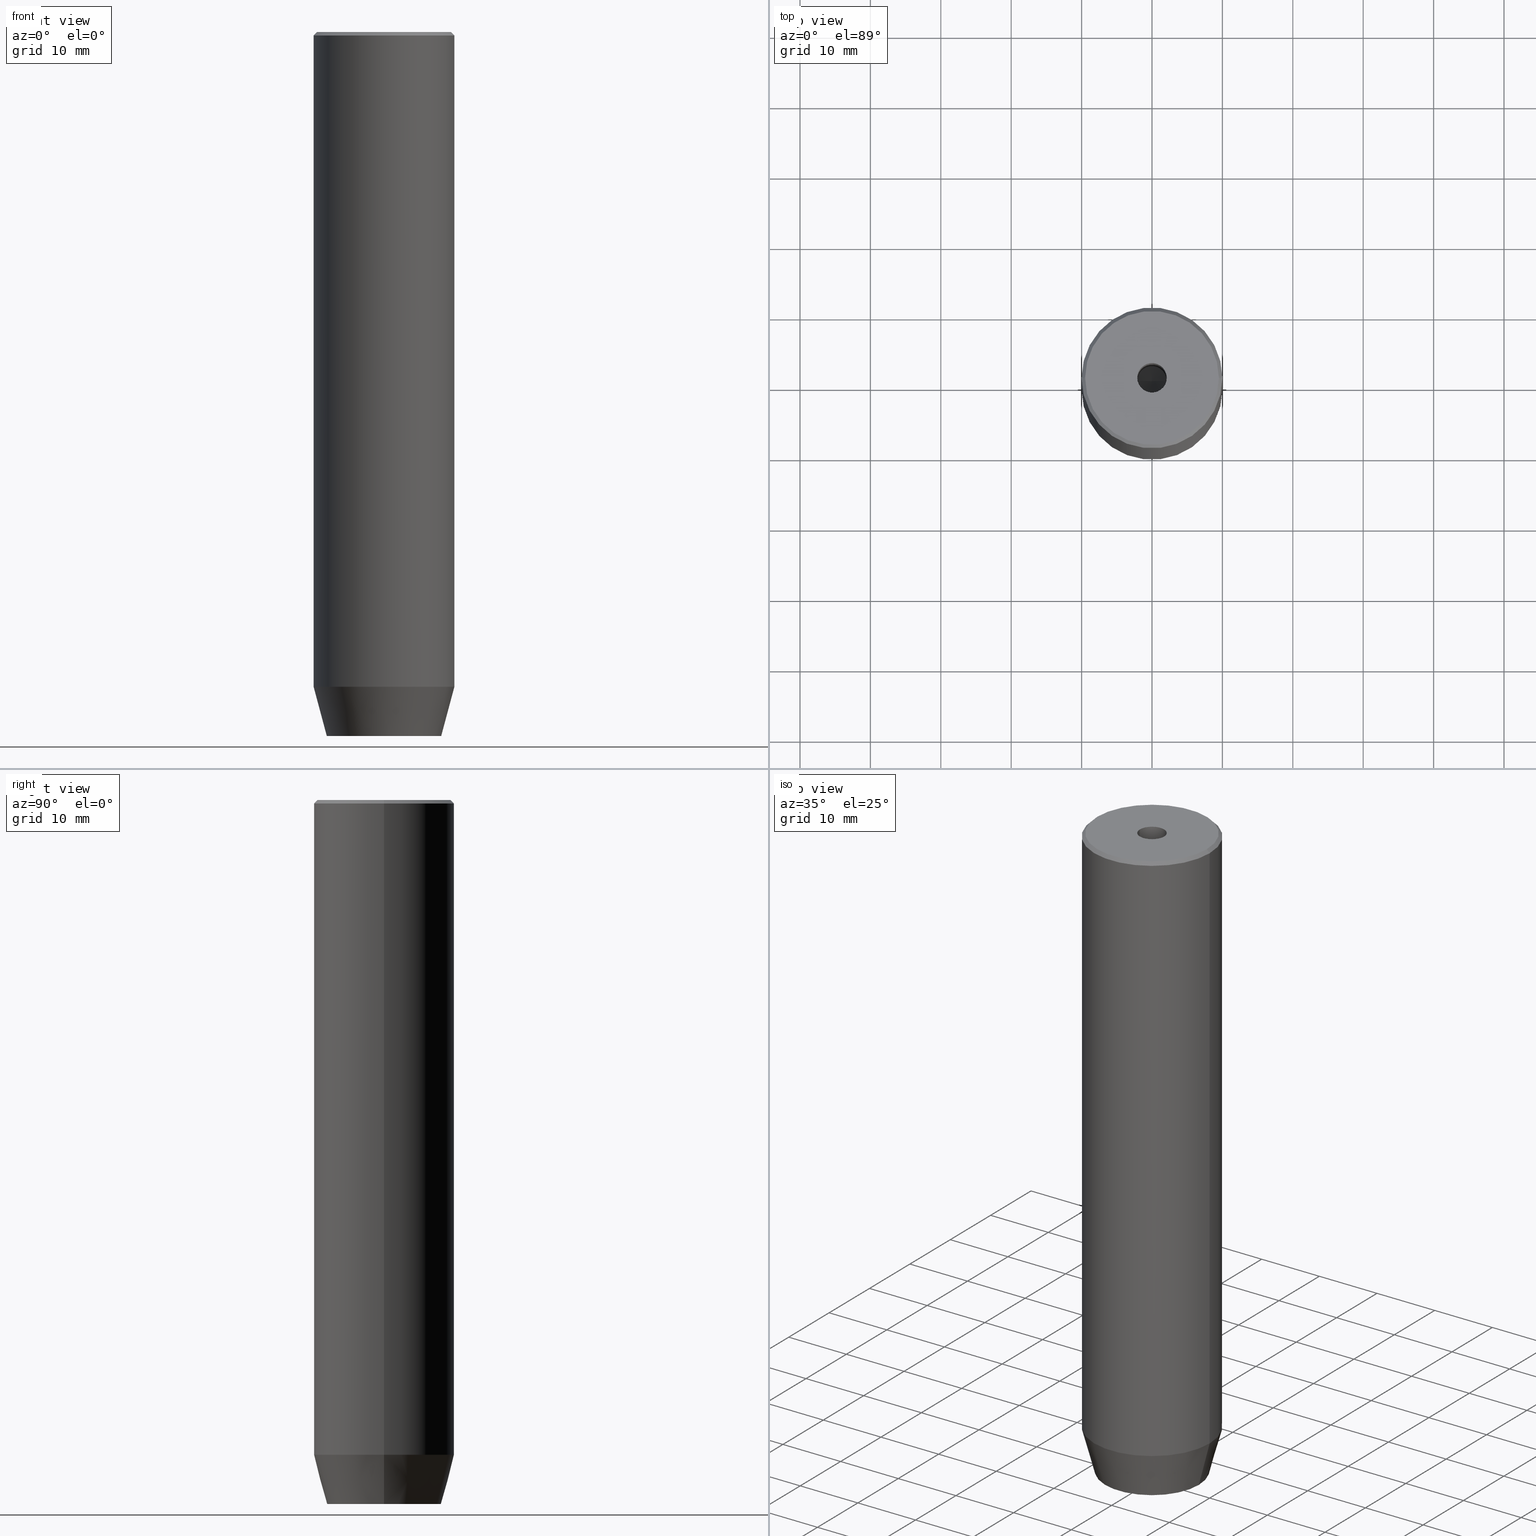
[diagram: canonical four-view strip — front | top / right | iso, engineering-drawing reading convention]
A machine part, canonical four-view strip (front | top / right | iso — engineering-drawing reading convention). The complete STEP part file that produces these views, byte-faithful:
ISO-10303-21;
HEADER;
FILE_DESCRIPTION (( 'STEP AP203' ),
    '1' );
FILE_NAME ('233e.STEP',
    '2024-01-02T19:05:24',
    ( '' ),
    ( '' ),
    'SwSTEP 2.0',
    'SolidWorks 2019',
    '' );
FILE_SCHEMA (( 'CONFIG_CONTROL_DESIGN' ));
ENDSEC;

DATA;
#1 = PERSON_AND_ORGANIZATION ( #222, #417 ) ;
#2 = AXIS2_PLACEMENT_3D ( 'NONE', #167, #474, #249 ) ;
#3 = EDGE_CURVE ( 'NONE', #294, #372, #199, .T. ) ;
#4 = CARTESIAN_POINT ( 'NONE',  ( -9.499999999999994671, 0.000000000000000000, 0.000000000000000000 ) ) ;
#5 = APPROVAL_DATE_TIME ( #560, #559 ) ;
#6 = DIRECTION ( 'NONE',  ( 1.000000000000000000, 0.000000000000000000, 0.000000000000000000 ) ) ;
#7 = ORIENTED_EDGE ( 'NONE', *, *, #422, .F. ) ;
#8 = EDGE_CURVE ( 'NONE', #567, #415, #277, .T. ) ;
#9 = FACE_OUTER_BOUND ( 'NONE', #194, .T. ) ;
#10 = ORIENTED_EDGE ( 'NONE', *, *, #404, .T. ) ;
#11 = DIRECTION ( 'NONE',  ( -0.000000000000000000, -0.000000000000000000, -1.000000000000000000 ) ) ;
#12 = AXIS2_PLACEMENT_3D ( 'NONE', #147, #189, #6 ) ;
#13 = VECTOR ( 'NONE', #76, 1000.000000000000000 ) ;
#14 = ORIENTED_EDGE ( 'NONE', *, *, #49, .T. ) ;
#15 = DIRECTION ( 'NONE',  ( -0.000000000000000000, -0.000000000000000000, 1.000000000000000000 ) ) ;
#16 = LINE ( 'NONE', #377, #116 ) ;
#17 = ORIENTED_EDGE ( 'NONE', *, *, #21, .F. ) ;
#18 = CARTESIAN_POINT ( 'NONE',  ( 0.000000000000000000, 8.124355652982135467, -100.0000000000000000 ) ) ;
#19 = AXIS2_PLACEMENT_3D ( 'NONE', #135, #305, #498 ) ;
#20 = DIRECTION ( 'NONE',  ( -1.000000000000000000, 0.000000000000000000, -0.000000000000000000 ) ) ;
#21 = EDGE_CURVE ( 'NONE', #160, #427, #55, .T. ) ;
#22 = AXIS2_PLACEMENT_3D ( 'NONE', #385, #251, #168 ) ;
#23 = DIRECTION ( 'NONE',  ( -0.8660254037844384856, -0.5000000000000002220, 0.000000000000000000 ) ) ;
#24 = VERTEX_POINT ( 'NONE', #193 ) ;
#25 = LINE ( 'NONE', #37, #45 ) ;
#26 = LINE ( 'NONE', #577, #355 ) ;
#27 = ORIENTED_EDGE ( 'NONE', *, *, #565, .T. ) ;
#28 = DIRECTION ( 'NONE',  ( 1.000000000000000000, 0.000000000000000000, 0.000000000000000000 ) ) ;
#29 = CARTESIAN_POINT ( 'NONE',  ( -4.000000000000000000, -2.309401076758503368, -100.0000000000000000 ) ) ;
#30 = ORIENTED_EDGE ( 'NONE', *, *, #195, .F. ) ;
#31 = EDGE_CURVE ( 'NONE', #415, #201, #97, .T. ) ;
#32 = CARTESIAN_POINT ( 'NONE',  ( 10.00000000000000000, 0.000000000000000000, -0.4999999999999987232 ) ) ;
#33 = AXIS2_PLACEMENT_3D ( 'NONE', #571, #260, #299 ) ;
#34 = DIRECTION ( 'NONE',  ( 0.000000000000000000, 0.000000000000000000, -1.000000000000000000 ) ) ;
#35 = ORIENTED_EDGE ( 'NONE', *, *, #238, .F. ) ;
#36 = CC_DESIGN_PERSON_AND_ORGANIZATION_ASSIGNMENT ( #228, #543, ( #68 ) ) ;
#37 = CARTESIAN_POINT ( 'NONE',  ( -4.000000000000000000, 0.000000000000000000, -100.0000000000000000 ) ) ;
#38 = LINE ( 'NONE', #220, #440 ) ;
#39 = ORIENTED_EDGE ( 'NONE', *, *, #274, .F. ) ;
#40 = CARTESIAN_POINT ( 'NONE',  ( 9.499999999999994671, 1.163414459189984894E-15, 0.000000000000000000 ) ) ;
#41 = EDGE_CURVE ( 'NONE', #507, #66, #100, .T. ) ;
#42 = APPROVAL_DATE_TIME ( #359, #347 ) ;
#43 = ORIENTED_EDGE ( 'NONE', *, *, #234, .F. ) ;
#44 = COORDINATED_UNIVERSAL_TIME_OFFSET ( 1, 0, .AHEAD. ) ;
#45 = VECTOR ( 'NONE', #535, 1000.000000000000000 ) ;
#46 = CARTESIAN_POINT ( 'NONE',  ( -4.000000000000000000, 0.000000000000000000, -97.20000000000000284 ) ) ;
#47 = PERSON_AND_ORGANIZATION_ROLE ( 'classification_officer' ) ;
#48 = DIRECTION ( 'NONE',  ( -0.7071067811865524577, 0.000000000000000000, -0.7071067811865426878 ) ) ;
#49 = EDGE_CURVE ( 'NONE', #581, #442, #437, .T. ) ;
#50 = PRODUCT_DEFINITION_SHAPE ( 'NONE', 'NONE',  #89 ) ;
#51 = MECHANICAL_CONTEXT ( 'NONE', #310, 'mechanical' ) ;
#52 = CARTESIAN_POINT ( 'NONE',  ( 0.000000000000000000, 0.000000000000000000, 0.000000000000000000 ) ) ;
#53 = CC_DESIGN_PERSON_AND_ORGANIZATION_ASSIGNMENT ( #410, #265, ( #481 ) ) ;
#54 = ORIENTED_EDGE ( 'NONE', *, *, #404, .F. ) ;
#55 = LINE ( 'NONE', #463, #93 ) ;
#56 = CC_DESIGN_DATE_AND_TIME_ASSIGNMENT ( #137, #499, ( #513 ) ) ;
#57 = DIRECTION ( 'NONE',  ( 0.000000000000000000, 0.000000000000000000, -1.000000000000000000 ) ) ;
#58 = ORIENTED_EDGE ( 'NONE', *, *, #94, .T. ) ;
#59 = DIRECTION ( 'NONE',  ( 0.000000000000000000, 0.000000000000000000, -1.000000000000000000 ) ) ;
#60 = VECTOR ( 'NONE', #521, 1000.000000000000000 ) ;
#61 = DIRECTION ( 'NONE',  ( -0.000000000000000000, -0.000000000000000000, -1.000000000000000000 ) ) ;
#62 = CARTESIAN_POINT ( 'NONE',  ( 10.00000000000000000, 0.000000000000000000, -93.00000000000000000 ) ) ;
#63 = EDGE_CURVE ( 'NONE', #462, #24, #250, .T. ) ;
#64 = CARTESIAN_POINT ( 'NONE',  ( -2.000000000000000000, 3.464101615137754830, -100.0000000000000000 ) ) ;
#65 = FACE_OUTER_BOUND ( 'NONE', #382, .T. ) ;
#66 = VERTEX_POINT ( 'NONE', #286 ) ;
#67 = LINE ( 'NONE', #323, #60 ) ;
#68 = PRODUCT_DEFINITION_FORMATION_WITH_SPECIFIED_SOURCE ( 'LIBOVOLN�', '', #481, .NOT_KNOWN. ) ;
#69 = VECTOR ( 'NONE', #516, 1000.000000000000000 ) ;
#70 = DIRECTION ( 'NONE',  ( 0.5000000000000001110, 0.8660254037844385966, -0.000000000000000000 ) ) ;
#71 = ORIENTED_EDGE ( 'NONE', *, *, #413, .F. ) ;
#72 = EDGE_CURVE ( 'NONE', #66, #177, #67, .T. ) ;
#73 = CARTESIAN_POINT ( 'NONE',  ( 0.000000000000000000, 0.000000000000000000, -0.4999999999999987232 ) ) ;
#74 = ORIENTED_EDGE ( 'NONE', *, *, #130, .F. ) ;
#75 = DIRECTION ( 'NONE',  ( 1.000000000000000000, 0.000000000000000000, 0.000000000000000000 ) ) ;
#76 = DIRECTION ( 'NONE',  ( 0.000000000000000000, -1.000000000000000000, 0.000000000000000000 ) ) ;
#77 = ORIENTED_EDGE ( 'NONE', *, *, #546, .T. ) ;
#78 = DIRECTION ( 'NONE',  ( 1.000000000000000000, 0.000000000000000000, 0.000000000000000000 ) ) ;
#79 = CIRCLE ( 'NONE', #261, 2.099999999999998757 ) ;
#80 = VECTOR ( 'NONE', #98, 1000.000000000000000 ) ;
#81 = CARTESIAN_POINT ( 'NONE',  ( 8.124355652982135467, 0.000000000000000000, -100.0000000000000000 ) ) ;
#82 = ORIENTED_EDGE ( 'NONE', *, *, #509, .T. ) ;
#83 = DIRECTION ( 'NONE',  ( 0.8571673007021108903, 0.000000000000000000, 0.5150380749100565980 ) ) ;
#84 = ORIENTED_EDGE ( 'NONE', *, *, #219, .T. ) ;
#85 = ADVANCED_FACE ( 'NONE', ( #369 ), #370, .T. ) ;
#86 = CALENDAR_DATE ( 2024, 2, 1 ) ;
#87 = VERTEX_POINT ( 'NONE', #325 ) ;
#88 = CIRCLE ( 'NONE', #495, 10.00000000000000000 ) ;
#89 = PRODUCT_DEFINITION ( 'NEZN�M�', '', #68, #478 ) ;
#90 = PERSON_AND_ORGANIZATION_ROLE ( 'creator' ) ;
#91 = APPROVAL_PERSON_ORGANIZATION ( #491, #150, #181 ) ;
#92 = FACE_OUTER_BOUND ( 'NONE', #557, .T. ) ;
#93 = VECTOR ( 'NONE', #11, 1000.000000000000000 ) ;
#94 = EDGE_CURVE ( 'NONE', #515, #160, #555, .T. ) ;
#95 = DIRECTION ( 'NONE',  ( -0.000000000000000000, -0.000000000000000000, 1.000000000000000000 ) ) ;
#96 = EDGE_LOOP ( 'NONE', ( #173, #153 ) ) ;
#97 = LINE ( 'NONE', #379, #103 ) ;
#98 = DIRECTION ( 'NONE',  ( -0.000000000000000000, -0.000000000000000000, -1.000000000000000000 ) ) ;
#99 = VERTEX_POINT ( 'NONE', #283 ) ;
#100 = LINE ( 'NONE', #154, #115 ) ;
#101 = CARTESIAN_POINT ( 'NONE',  ( 2.168404344971008868E-16, 4.618802153517005848, -100.0000000000000000 ) ) ;
#102 = DIRECTION ( 'NONE',  ( -1.000000000000000000, 0.000000000000000000, 0.000000000000000000 ) ) ;
#103 = VECTOR ( 'NONE', #455, 1000.000000000000000 ) ;
#104 = APPROVAL_ROLE ( '' ) ;
#105 = EDGE_CURVE ( 'NONE', #372, #190, #151, .T. ) ;
#106 = DIRECTION ( 'NONE',  ( -0.000000000000000000, -0.000000000000000000, 1.000000000000000000 ) ) ;
#107 = ORIENTED_EDGE ( 'NONE', *, *, #72, .T. ) ;
#108 = DIRECTION ( 'NONE',  ( -0.8660254037844384856, 0.5000000000000002220, 0.000000000000000000 ) ) ;
#109 = DIRECTION ( 'NONE',  ( -0.000000000000000000, -0.000000000000000000, 1.000000000000000000 ) ) ;
#110 = ORIENTED_EDGE ( 'NONE', *, *, #565, .F. ) ;
#111 = PLANE ( 'NONE',  #226 ) ;
#112 = FACE_OUTER_BOUND ( 'NONE', #578, .T. ) ;
#113 = ORIENTED_EDGE ( 'NONE', *, *, #31, .F. ) ;
#114 = EDGE_CURVE ( 'NONE', #515, #99, #242, .T. ) ;
#115 = VECTOR ( 'NONE', #562, 1000.000000000000000 ) ;
#116 = VECTOR ( 'NONE', #139, 1000.000000000000000 ) ;
#117 = CARTESIAN_POINT ( 'NONE',  ( -8.124355652982135467, 1.109796706851640556E-15, -100.0000000000000000 ) ) ;
#118 = EDGE_LOOP ( 'NONE', ( #473, #121, #211, #225 ) ) ;
#119 = FACE_OUTER_BOUND ( 'NONE', #118, .T. ) ;
#120 = CARTESIAN_POINT ( 'NONE',  ( 0.000000000000000000, 0.000000000000000000, -93.00000000000000000 ) ) ;
#121 = ORIENTED_EDGE ( 'NONE', *, *, #41, .T. ) ;
#122 = DIRECTION ( 'NONE',  ( -0.000000000000000000, -0.000000000000000000, -1.000000000000000000 ) ) ;
#123 = DIRECTION ( 'NONE',  ( -0.5000000000000000000, 0.8660254037844387076, 0.000000000000000000 ) ) ;
#124 = ORIENTED_EDGE ( 'NONE', *, *, #366, .T. ) ;
#125 = DIRECTION ( 'NONE',  ( -0.000000000000000000, -0.000000000000000000, 1.000000000000000000 ) ) ;
#126 = APPROVAL_PERSON_ORGANIZATION ( #460, #559, #104 ) ;
#127 = AXIS2_PLACEMENT_3D ( 'NONE', #365, #57, #501 ) ;
#128 =( NAMED_UNIT ( * ) PLANE_ANGLE_UNIT ( ) SI_UNIT ( $, .RADIAN. ) );
#129 = ORIENTED_EDGE ( 'NONE', *, *, #259, .T. ) ;
#130 = EDGE_CURVE ( 'NONE', #581, #534, #373, .T. ) ;
#131 = FACE_OUTER_BOUND ( 'NONE', #526, .T. ) ;
#132 = ORIENTED_EDGE ( 'NONE', *, *, #449, .F. ) ;
#133 = CC_DESIGN_PERSON_AND_ORGANIZATION_ASSIGNMENT ( #272, #47, ( #513 ) ) ;
#134 = EDGE_CURVE ( 'NONE', #263, #534, #79, .T. ) ;
#135 = CARTESIAN_POINT ( 'NONE',  ( 0.000000000000000000, 0.000000000000000000, 0.000000000000000000 ) ) ;
#136 = CONICAL_SURFACE ( 'NONE', #396, 2.099999999999995648, 1.029744258676651647 ) ;
#137 = DATE_AND_TIME ( #231, #483 ) ;
#138 = CC_DESIGN_APPROVAL ( #559, ( #513 ) ) ;
#139 = DIRECTION ( 'NONE',  ( -0.000000000000000000, -0.000000000000000000, 1.000000000000000000 ) ) ;
#140 = VECTOR ( 'NONE', #295, 1000.000000000000000 ) ;
#141 = CIRCLE ( 'NONE', #448, 10.00000000000000000 ) ;
#142 = DIRECTION ( 'NONE',  ( 1.000000000000000000, 0.000000000000000000, 0.000000000000000000 ) ) ;
#143 = MANIFOLD_SOLID_BREP ( 'Vrt�k z�vitn�ku pro M5 z�vit1', #180 ) ;
#144 = CYLINDRICAL_SURFACE ( 'NONE', #12, 2.099999999999996980 ) ;
#145 = ORIENTED_EDGE ( 'NONE', *, *, #8, .T. ) ;
#146 = CARTESIAN_POINT ( 'NONE',  ( -2.099999999999996980, 2.571758278209438013E-16, 0.000000000000000000 ) ) ;
#147 = CARTESIAN_POINT ( 'NONE',  ( 0.000000000000000000, 0.000000000000000000, 0.000000000000000000 ) ) ;
#148 = ORIENTED_EDGE ( 'NONE', *, *, #429, .T. ) ;
#149 = FACE_BOUND ( 'NONE', #252, .T. ) ;
#150 = APPROVAL ( #412, 'NEUR�EN�' ) ;
#151 = LINE ( 'NONE', #550, #69 ) ;
#152 = VECTOR ( 'NONE', #122, 1000.000000000000000 ) ;
#153 = ORIENTED_EDGE ( 'NONE', *, *, #502, .F. ) ;
#154 = CARTESIAN_POINT ( 'NONE',  ( -10.00000000000000000, 1.224646799147353256E-15, -93.00000000000000000 ) ) ;
#155 = DIRECTION ( 'NONE',  ( -0.8660254037844385966, -0.4999999999999999445, 0.000000000000000000 ) ) ;
#156 = ORIENTED_EDGE ( 'NONE', *, *, #184, .F. ) ;
#157 = ADVANCED_FACE ( 'NONE', ( #196, #334 ), #111, .T. ) ;
#158 = LINE ( 'NONE', #213, #162 ) ;
#159 = CARTESIAN_POINT ( 'NONE',  ( -2.000000000000000888, -3.464101615137754386, -97.20000000000000284 ) ) ;
#160 = VERTEX_POINT ( 'NONE', #330 ) ;
#161 = PLANE ( 'NONE',  #33 ) ;
#162 = VECTOR ( 'NONE', #218, 1000.000000000000000 ) ;
#163 = VECTOR ( 'NONE', #197, 1000.000000000000000 ) ;
#164 = CIRCLE ( 'NONE', #459, 10.00000000000000000 ) ;
#165 = DIRECTION ( 'NONE',  ( -1.000000000000000000, 0.000000000000000000, 0.000000000000000000 ) ) ;
#166 = ORIENTED_EDGE ( 'NONE', *, *, #63, .T. ) ;
#167 = CARTESIAN_POINT ( 'NONE',  ( 4.000000000000000000, 0.000000000000000000, -97.20000000000000284 ) ) ;
#168 = DIRECTION ( 'NONE',  ( 1.000000000000000000, 0.000000000000000000, 0.000000000000000000 ) ) ;
#169 = ORIENTED_EDGE ( 'NONE', *, *, #105, .T. ) ;
#170 = DIRECTION ( 'NONE',  ( 1.000000000000000000, 0.000000000000000000, 0.000000000000000000 ) ) ;
#171 = ADVANCED_FACE ( 'NONE', ( #149, #512 ), #423, .T. ) ;
#172 = APPROVAL_ROLE ( '' ) ;
#173 = ORIENTED_EDGE ( 'NONE', *, *, #134, .F. ) ;
#174 = CARTESIAN_POINT ( 'NONE',  ( 0.000000000000000000, 0.000000000000000000, -93.00000000000000000 ) ) ;
#175 = LOCAL_TIME ( 20, 5, 24.00000000000000000, #405 ) ;
#176 = CONICAL_SURFACE ( 'NONE', #551, 10.00000000000000000, 0.2617993877991500740 ) ;
#177 = VERTEX_POINT ( 'NONE', #202 ) ;
#178 = PERSON_AND_ORGANIZATION ( #222, #417 ) ;
#179 = ADVANCED_FACE ( 'NONE', ( #384 ), #564, .F. ) ;
#180 = CLOSED_SHELL ( 'NONE', ( #342, #469, #532, #267, #278, #171, #157, #319, #296, #85, #554, #204, #486, #454, #179, #461, #227, #380, #331 ) ) ;
#181 = APPROVAL_ROLE ( '' ) ;
#182 = CIRCLE ( 'NONE', #192, 8.124355652982135467 ) ;
#183 = VECTOR ( 'NONE', #451, 1000.000000000000000 ) ;
#184 = EDGE_CURVE ( 'NONE', #190, #241, #223, .T. ) ;
#185 = SHAPE_DEFINITION_REPRESENTATION ( #50, #397 ) ;
#186 = DIRECTION ( 'NONE',  ( -0.8660254037844384856, 0.5000000000000002220, 0.000000000000000000 ) ) ;
#187 = ORIENTED_EDGE ( 'NONE', *, *, #422, .T. ) ;
#188 = DIRECTION ( 'NONE',  ( -0.000000000000000000, -0.000000000000000000, 1.000000000000000000 ) ) ;
#189 = DIRECTION ( 'NONE',  ( -0.000000000000000000, -0.000000000000000000, 1.000000000000000000 ) ) ;
#190 = VERTEX_POINT ( 'NONE', #350 ) ;
#191 = AXIS2_PLACEMENT_3D ( 'NONE', #506, #457, #416 ) ;
#192 = AXIS2_PLACEMENT_3D ( 'NONE', #210, #566, #479 ) ;
#193 = CARTESIAN_POINT ( 'NONE',  ( 9.499999999999994671, 1.194030629168669075E-15, 0.000000000000000000 ) ) ;
#194 = EDGE_LOOP ( 'NONE', ( #74, #282, #10, #476 ) ) ;
#195 = EDGE_CURVE ( 'NONE', #427, #294, #25, .T. ) ;
#196 = FACE_BOUND ( 'NONE', #96, .T. ) ;
#197 = DIRECTION ( 'NONE',  ( 0.8660254037844385966, -0.5000000000000001110, 0.000000000000000000 ) ) ;
#198 = ORIENTED_EDGE ( 'NONE', *, *, #444, .F. ) ;
#199 = LINE ( 'NONE', #64, #354 ) ;
#200 = DIRECTION ( 'NONE',  ( 1.000000000000000000, 0.000000000000000000, 0.000000000000000000 ) ) ;
#201 = VERTEX_POINT ( 'NONE', #32 ) ;
#202 = CARTESIAN_POINT ( 'NONE',  ( -10.00000000000000000, 1.224646799147353256E-15, -0.4999999999999987232 ) ) ;
#203 = AXIS2_PLACEMENT_3D ( 'NONE', #18, #465, #20 ) ;
#204 = ADVANCED_FACE ( 'NONE', ( #568 ), #161, .F. ) ;
#205 = DIRECTION ( 'NONE',  ( 0.000000000000000000, 0.000000000000000000, -1.000000000000000000 ) ) ;
#206 = ORIENTED_EDGE ( 'NONE', *, *, #114, .F. ) ;
#207 = DIRECTION ( 'NONE',  ( 0.5000000000000003331, -0.8660254037844385966, 0.000000000000000000 ) ) ;
#208 = ORIENTED_EDGE ( 'NONE', *, *, #289, .T. ) ;
#209 = DIRECTION ( 'NONE',  ( 0.000000000000000000, 0.000000000000000000, -1.000000000000000000 ) ) ;
#210 = CARTESIAN_POINT ( 'NONE',  ( 0.000000000000000000, 0.000000000000000000, -100.0000000000000000 ) ) ;
#211 = ORIENTED_EDGE ( 'NONE', *, *, #366, .F. ) ;
#212 = LOCAL_TIME ( 20, 5, 24.00000000000000000, #44 ) ;
#213 = CARTESIAN_POINT ( 'NONE',  ( 4.000000000000000000, 2.309401076758503368, -97.20000000000000284 ) ) ;
#214 = VECTOR ( 'NONE', #48, 1000.000000000000000 ) ;
#215 = AXIS2_PLACEMENT_3D ( 'NONE', #248, #123, #155 ) ;
#216 = DIRECTION ( 'NONE',  ( -0.000000000000000000, -0.000000000000000000, 1.000000000000000000 ) ) ;
#217 = EDGE_LOOP ( 'NONE', ( #537, #43, #485, #561 ) ) ;
#218 = DIRECTION ( 'NONE',  ( -0.000000000000000000, -0.000000000000000000, -1.000000000000000000 ) ) ;
#219 = EDGE_CURVE ( 'NONE', #419, #190, #158, .T. ) ;
#220 = CARTESIAN_POINT ( 'NONE',  ( 2.099999999999995648, 0.000000000000000000, -25.00000000000000000 ) ) ;
#221 = ORIENTED_EDGE ( 'NONE', *, *, #49, .F. ) ;
#222 = PERSON ( 'NEUR�EN�', 'NEUR�EN�', 'NEUR�EN�', ('NEUR�EN�'), ('NEUR�EN�'), ('NEUR�EN�') ) ;
#223 = LINE ( 'NONE', #337, #411 ) ;
#224 = PERSON_AND_ORGANIZATION_ROLE ( 'design_supplier' ) ;
#225 = ORIENTED_EDGE ( 'NONE', *, *, #8, .F. ) ;
#226 = AXIS2_PLACEMENT_3D ( 'NONE', #376, #320, #558 ) ;
#227 = ADVANCED_FACE ( 'NONE', ( #256 ), #528, .T. ) ;
#228 = PERSON_AND_ORGANIZATION ( #222, #417 ) ;
#229 =( GEOMETRIC_REPRESENTATION_CONTEXT ( 3 ) GLOBAL_UNCERTAINTY_ASSIGNED_CONTEXT ( ( #517 ) ) GLOBAL_UNIT_ASSIGNED_CONTEXT ( ( #273, #128, #356 ) ) REPRESENTATION_CONTEXT ( 'NONE', 'WORKASPACE' ) );
#230 = LINE ( 'NONE', #4, #214 ) ;
#231 = CALENDAR_DATE ( 2024, 2, 1 ) ;
#232 = CIRCLE ( 'NONE', #586, 9.499999999999994671 ) ;
#233 = CALENDAR_DATE ( 2024, 2, 1 ) ;
#234 = EDGE_CURVE ( 'NONE', #306, #294, #531, .T. ) ;
#235 = DIRECTION ( 'NONE',  ( -0.000000000000000000, -0.000000000000000000, 1.000000000000000000 ) ) ;
#236 = ORIENTED_EDGE ( 'NONE', *, *, #520, .F. ) ;
#237 = CARTESIAN_POINT ( 'NONE',  ( 4.336808689942017736E-16, -4.618802153517006737, -97.20000000000000284 ) ) ;
#238 = EDGE_CURVE ( 'NONE', #507, #567, #408, .T. ) ;
#239 = CIRCLE ( 'NONE', #127, 10.00000000000000000 ) ;
#240 = CYLINDRICAL_SURFACE ( 'NONE', #504, 10.00000000000000000 ) ;
#241 = VERTEX_POINT ( 'NONE', #482 ) ;
#242 = LINE ( 'NONE', #237, #514 ) ;
#243 = DIRECTION ( 'NONE',  ( 1.000000000000000000, 0.000000000000000000, 0.000000000000000000 ) ) ;
#244 = DIRECTION ( 'NONE',  ( -0.000000000000000000, -0.000000000000000000, 1.000000000000000000 ) ) ;
#245 = FACE_OUTER_BOUND ( 'NONE', #328, .T. ) ;
#246 = ORIENTED_EDGE ( 'NONE', *, *, #313, .T. ) ;
#247 = CARTESIAN_POINT ( 'NONE',  ( 0.000000000000000000, 0.000000000000000000, 0.000000000000000000 ) ) ;
#248 = CARTESIAN_POINT ( 'NONE',  ( -2.000000000000000000, 3.464101615137754830, -97.20000000000000284 ) ) ;
#249 = DIRECTION ( 'NONE',  ( -0.000000000000000000, 0.000000000000000000, -1.000000000000000000 ) ) ;
#250 = CIRCLE ( 'NONE', #341, 9.499999999999994671 ) ;
#251 = DIRECTION ( 'NONE',  ( -0.000000000000000000, -0.000000000000000000, 1.000000000000000000 ) ) ;
#252 = EDGE_LOOP ( 'NONE', ( #574, #30, #436, #198, #156, #301 ) ) ;
#253 = CARTESIAN_POINT ( 'NONE',  ( -4.000000000000000000, 2.309401076758503368, -97.20000000000000284 ) ) ;
#254 = DIRECTION ( 'NONE',  ( -0.8660254037844385966, 0.5000000000000001110, 0.000000000000000000 ) ) ;
#255 = ORIENTED_EDGE ( 'NONE', *, *, #583, .T. ) ;
#256 = FACE_OUTER_BOUND ( 'NONE', #375, .T. ) ;
#257 = FACE_OUTER_BOUND ( 'NONE', #431, .T. ) ;
#258 = ORIENTED_EDGE ( 'NONE', *, *, #509, .F. ) ;
#259 = EDGE_CURVE ( 'NONE', #24, #462, #232, .T. ) ;
#260 = DIRECTION ( 'NONE',  ( -1.000000000000000000, 0.000000000000000000, 0.000000000000000000 ) ) ;
#261 = AXIS2_PLACEMENT_3D ( 'NONE', #420, #15, #290 ) ;
#262 = PLANE ( 'NONE',  #527 ) ;
#263 = VERTEX_POINT ( 'NONE', #400 ) ;
#264 = DIRECTION ( 'NONE',  ( 1.000000000000000000, 0.000000000000000000, 0.000000000000000000 ) ) ;
#265 = PERSON_AND_ORGANIZATION_ROLE ( 'design_owner' ) ;
#266 = ORIENTED_EDGE ( 'NONE', *, *, #63, .F. ) ;
#267 = ADVANCED_FACE ( 'NONE', ( #119 ), #394, .T. ) ;
#268 = DATE_AND_TIME ( #233, #212 ) ;
#269 = CC_DESIGN_APPROVAL ( #347, ( #68 ) ) ;
#270 = CC_DESIGN_PERSON_AND_ORGANIZATION_ASSIGNMENT ( #587, #224, ( #68 ) ) ;
#271 = COORDINATED_UNIVERSAL_TIME_OFFSET ( 1, 0, .AHEAD. ) ;
#272 = PERSON_AND_ORGANIZATION ( #222, #417 ) ;
#273 =( LENGTH_UNIT ( ) NAMED_UNIT ( * ) SI_UNIT ( .MILLI., .METRE. ) );
#274 = EDGE_CURVE ( 'NONE', #24, #201, #302, .T. ) ;
#275 = DIRECTION ( 'NONE',  ( -0.000000000000000000, -0.000000000000000000, 1.000000000000000000 ) ) ;
#276 = EDGE_LOOP ( 'NONE', ( #570, #71, #258, #84 ) ) ;
#277 = LINE ( 'NONE', #279, #363 ) ;
#278 = ADVANCED_FACE ( 'NONE', ( #131 ), #488, .T. ) ;
#279 = CARTESIAN_POINT ( 'NONE',  ( 10.00000000000000000, 0.000000000000000000, -93.00000000000000000 ) ) ;
#280 = VECTOR ( 'NONE', #244, 1000.000000000000000 ) ;
#281 = LINE ( 'NONE', #317, #329 ) ;
#282 = ORIENTED_EDGE ( 'NONE', *, *, #289, .F. ) ;
#283 = CARTESIAN_POINT ( 'NONE',  ( 4.336808689942017736E-16, -4.618802153517006737, -100.0000000000000000 ) ) ;
#284 = DIRECTION ( 'NONE',  ( 1.000000000000000000, 0.000000000000000000, 0.000000000000000000 ) ) ;
#285 = ORIENTED_EDGE ( 'NONE', *, *, #520, .T. ) ;
#286 = CARTESIAN_POINT ( 'NONE',  ( -10.00000000000000000, 1.224646799147353256E-15, -93.00000000000000000 ) ) ;
#287 = FACE_OUTER_BOUND ( 'NONE', #480, .T. ) ;
#288 = ORIENTED_EDGE ( 'NONE', *, *, #409, .F. ) ;
#289 = EDGE_CURVE ( 'NONE', #442, #581, #425, .T. ) ;
#290 = DIRECTION ( 'NONE',  ( 1.000000000000000000, 0.000000000000000000, 0.000000000000000000 ) ) ;
#291 = CARTESIAN_POINT ( 'NONE',  ( 2.000000000000000888, -3.464101615137754386, -97.20000000000000284 ) ) ;
#292 = VERTEX_POINT ( 'NONE', #443 ) ;
#293 = CARTESIAN_POINT ( 'NONE',  ( 0.000000000000000000, 0.000000000000000000, -25.00000000000000000 ) ) ;
#294 = VERTEX_POINT ( 'NONE', #403 ) ;
#295 = DIRECTION ( 'NONE',  ( 0.7071067811865524577, 8.659560562354993255E-17, -0.7071067811865426878 ) ) ;
#296 = ADVANCED_FACE ( 'NONE', ( #582 ), #176, .T. ) ;
#297 = LINE ( 'NONE', #522, #439 ) ;
#298 = ORIENTED_EDGE ( 'NONE', *, *, #409, .T. ) ;
#299 = DIRECTION ( 'NONE',  ( 0.000000000000000000, 0.000000000000000000, 1.000000000000000000 ) ) ;
#300 = LINE ( 'NONE', #484, #364 ) ;
#301 = ORIENTED_EDGE ( 'NONE', *, *, #105, .F. ) ;
#302 = LINE ( 'NONE', #40, #140 ) ;
#303 = AXIS2_PLACEMENT_3D ( 'NONE', #575, #579, #170 ) ;
#304 = AXIS2_PLACEMENT_3D ( 'NONE', #518, #70, #254 ) ;
#305 = DIRECTION ( 'NONE',  ( 0.000000000000000000, 0.000000000000000000, 1.000000000000000000 ) ) ;
#306 = VERTEX_POINT ( 'NONE', #307 ) ;
#307 = CARTESIAN_POINT ( 'NONE',  ( -4.000000000000000000, 2.309401076758503368, -97.20000000000000284 ) ) ;
#308 = EDGE_CURVE ( 'NONE', #462, #177, #230, .T. ) ;
#309 = ORIENTED_EDGE ( 'NONE', *, *, #31, .T. ) ;
#310 = APPLICATION_CONTEXT ( 'configuration controlled 3d designs of mechanical parts and assemblies' ) ;
#311 = AXIS2_PLACEMENT_3D ( 'NONE', #367, #106, #284 ) ;
#312 = CONICAL_SURFACE ( 'NONE', #383, 9.499999999999994671, 0.7853981633974552734 ) ;
#313 = EDGE_CURVE ( 'NONE', #177, #201, #239, .T. ) ;
#314 = APPROVAL_STATUS ( 'not_yet_approved' ) ;
#315 = COORDINATED_UNIVERSAL_TIME_OFFSET ( 1, 0, .AHEAD. ) ;
#316 = CIRCLE ( 'NONE', #22, 2.099999999999998757 ) ;
#317 = CARTESIAN_POINT ( 'NONE',  ( -2.099999999999995648, 2.571758278209436040E-16, -25.00000000000000000 ) ) ;
#318 = EDGE_LOOP ( 'NONE', ( #39, #266, #433, #467 ) ) ;
#319 = ADVANCED_FACE ( 'NONE', ( #92 ), #240, .T. ) ;
#320 = DIRECTION ( 'NONE',  ( 0.000000000000000000, -0.000000000000000000, 1.000000000000000000 ) ) ;
#321 = CARTESIAN_POINT ( 'NONE',  ( 4.000000000000000000, -2.309401076758502480, -97.20000000000000284 ) ) ;
#322 = ORIENTED_EDGE ( 'NONE', *, *, #130, .T. ) ;
#323 = CARTESIAN_POINT ( 'NONE',  ( -10.00000000000000000, 1.224646799147353256E-15, 0.000000000000000000 ) ) ;
#324 = EDGE_LOOP ( 'NONE', ( #169, #563, #446, #285 ) ) ;
#325 = CARTESIAN_POINT ( 'NONE',  ( 0.000000000000000000, 4.618802153517006737, -97.20000000000000284 ) ) ;
#326 = AXIS2_PLACEMENT_3D ( 'NONE', #524, #209, #346 ) ;
#327 = CARTESIAN_POINT ( 'NONE',  ( -2.000000000000000888, -3.464101615137754386, -100.0000000000000000 ) ) ;
#328 = EDGE_LOOP ( 'NONE', ( #288, #530, #208 ) ) ;
#329 = VECTOR ( 'NONE', #464, 1000.000000000000114 ) ;
#330 = CARTESIAN_POINT ( 'NONE',  ( -4.000000000000000000, -2.309401076758503368, -97.20000000000000284 ) ) ;
#331 = ADVANCED_FACE ( 'NONE', ( #9 ), #505, .F. ) ;
#332 = DIRECTION ( 'NONE',  ( 1.000000000000000000, 0.000000000000000000, 0.000000000000000000 ) ) ;
#333 = ORIENTED_EDGE ( 'NONE', *, *, #72, .F. ) ;
#334 = FACE_OUTER_BOUND ( 'NONE', #489, .T. ) ;
#335 = DIRECTION ( 'NONE',  ( 0.8660254037844387076, 0.5000000000000001110, 0.000000000000000000 ) ) ;
#336 = ORIENTED_EDGE ( 'NONE', *, *, #502, .T. ) ;
#337 = CARTESIAN_POINT ( 'NONE',  ( 4.000000000000000000, 0.000000000000000000, -100.0000000000000000 ) ) ;
#338 = FACE_OUTER_BOUND ( 'NONE', #324, .T. ) ;
#339 = ORIENTED_EDGE ( 'NONE', *, *, #308, .F. ) ;
#340 = DIRECTION ( 'NONE',  ( -0.000000000000000000, -0.000000000000000000, 1.000000000000000000 ) ) ;
#341 = AXIS2_PLACEMENT_3D ( 'NONE', #247, #188, #142 ) ;
#342 = ADVANCED_FACE ( 'NONE', ( #556 ), #144, .F. ) ;
#343 = VECTOR ( 'NONE', #533, 1000.000000000000000 ) ;
#344 = CARTESIAN_POINT ( 'NONE',  ( 4.000000000000000000, 0.000000000000000000, -97.20000000000000284 ) ) ;
#345 = ORIENTED_EDGE ( 'NONE', *, *, #259, .F. ) ;
#346 = DIRECTION ( 'NONE',  ( -1.000000000000000000, 0.000000000000000000, -0.000000000000000000 ) ) ;
#347 = APPROVAL ( #314, 'NEUR�EN�' ) ;
#348 = CARTESIAN_POINT ( 'NONE',  ( 2.099999999999995648, 0.000000000000000000, -25.00000000000000000 ) ) ;
#349 = ORIENTED_EDGE ( 'NONE', *, *, #576, .F. ) ;
#350 = CARTESIAN_POINT ( 'NONE',  ( 4.000000000000000000, 2.309401076758503368, -100.0000000000000000 ) ) ;
#351 = APPROVAL_DATE_TIME ( #545, #150 ) ;
#352 = ORIENTED_EDGE ( 'NONE', *, *, #444, .T. ) ;
#353 = DIRECTION ( 'NONE',  ( -0.000000000000000000, -0.000000000000000000, 1.000000000000000000 ) ) ;
#354 = VECTOR ( 'NONE', #468, 999.9999999999998863 ) ;
#355 = VECTOR ( 'NONE', #335, 999.9999999999998863 ) ;
#356 =( NAMED_UNIT ( * ) SI_UNIT ( $, .STERADIAN. ) SOLID_ANGLE_UNIT ( ) );
#357 = ORIENTED_EDGE ( 'NONE', *, *, #274, .T. ) ;
#358 = PRODUCT_RELATED_PRODUCT_CATEGORY ( 'detail', '', ( #481 ) ) ;
#359 = DATE_AND_TIME ( #447, #361 ) ;
#360 = DATE_TIME_ROLE ( 'creation_date' ) ;
#361 = LOCAL_TIME ( 20, 5, 24.00000000000000000, #536 ) ;
#362 = EDGE_CURVE ( 'NONE', #99, #427, #418, .T. ) ;
#363 = VECTOR ( 'NONE', #508, 1000.000000000000000 ) ;
#364 = VECTOR ( 'NONE', #426, 1000.000000000000114 ) ;
#365 = CARTESIAN_POINT ( 'NONE',  ( 0.000000000000000000, 0.000000000000000000, -0.4999999999999987232 ) ) ;
#366 = EDGE_CURVE ( 'NONE', #415, #66, #88, .T. ) ;
#367 = CARTESIAN_POINT ( 'NONE',  ( 0.000000000000000000, 0.000000000000000000, -25.00000000000000000 ) ) ;
#368 = ORIENTED_EDGE ( 'NONE', *, *, #313, .F. ) ;
#369 = FACE_OUTER_BOUND ( 'NONE', #318, .T. ) ;
#370 = CONICAL_SURFACE ( 'NONE', #452, 9.499999999999994671, 0.7853981633974552734 ) ;
#371 = LINE ( 'NONE', #548, #163 ) ;
#372 = VERTEX_POINT ( 'NONE', #101 ) ;
#373 = LINE ( 'NONE', #146, #280 ) ;
#374 = CARTESIAN_POINT ( 'NONE',  ( 0.000000000000000000, 0.000000000000000000, 0.000000000000000000 ) ) ;
#375 = EDGE_LOOP ( 'NONE', ( #187, #540, #82, #27, #58, #255 ) ) ;
#376 = CARTESIAN_POINT ( 'NONE',  ( 0.000000000000000000, 0.000000000000000000, 0.000000000000000000 ) ) ;
#377 = CARTESIAN_POINT ( 'NONE',  ( 2.099999999999996980, 0.000000000000000000, 0.000000000000000000 ) ) ;
#378 = ORIENTED_EDGE ( 'NONE', *, *, #234, .T. ) ;
#379 = CARTESIAN_POINT ( 'NONE',  ( 10.00000000000000000, 0.000000000000000000, 0.000000000000000000 ) ) ;
#380 = ADVANCED_FACE ( 'NONE', ( #245 ), #496, .F. ) ;
#381 = AXIS2_PLACEMENT_3D ( 'NONE', #434, #477, #75 ) ;
#382 = EDGE_LOOP ( 'NONE', ( #492, #236, #7, #378 ) ) ;
#383 = AXIS2_PLACEMENT_3D ( 'NONE', #441, #34, #165 ) ;
#384 = FACE_OUTER_BOUND ( 'NONE', #276, .T. ) ;
#385 = CARTESIAN_POINT ( 'NONE',  ( 0.000000000000000000, 0.000000000000000000, -1.990051048614449116E-16 ) ) ;
#386 = ORIENTED_EDGE ( 'NONE', *, *, #546, .F. ) ;
#387 = PLANE ( 'NONE',  #304 ) ;
#388 = EDGE_LOOP ( 'NONE', ( #406, #519, #145, #386 ) ) ;
#389 = EDGE_CURVE ( 'NONE', #87, #419, #371, .T. ) ;
#390 = CARTESIAN_POINT ( 'NONE',  ( 0.000000000000000000, 0.000000000000000000, 0.000000000000000000 ) ) ;
#391 = APPROVAL_PERSON_ORGANIZATION ( #1, #347, #172 ) ;
#392 = DIRECTION ( 'NONE',  ( -0.5000000000000003331, -0.8660254037844385966, 0.000000000000000000 ) ) ;
#393 = EDGE_LOOP ( 'NONE', ( #399, #17, #402, #511 ) ) ;
#394 = CONICAL_SURFACE ( 'NONE', #471, 10.00000000000000000, 0.2617993877991500740 ) ;
#395 = CARTESIAN_POINT ( 'NONE',  ( 0.000000000000000000, 0.000000000000000000, -93.00000000000000000 ) ) ;
#396 = AXIS2_PLACEMENT_3D ( 'NONE', #293, #109, #466 ) ;
#397 = ADVANCED_BREP_SHAPE_REPRESENTATION ( '233e', ( #143, #19 ), #229 ) ;
#398 = DIRECTION ( 'NONE',  ( 1.000000000000000000, 0.000000000000000000, 0.000000000000000000 ) ) ;
#399 = ORIENTED_EDGE ( 'NONE', *, *, #362, .T. ) ;
#400 = CARTESIAN_POINT ( 'NONE',  ( 2.099999999999998757, 0.000000000000000000, -1.990051048614449116E-16 ) ) ;
#401 = PLANE ( 'NONE',  #215 ) ;
#402 = ORIENTED_EDGE ( 'NONE', *, *, #94, .F. ) ;
#403 = CARTESIAN_POINT ( 'NONE',  ( -4.000000000000000000, 2.309401076758503368, -100.0000000000000000 ) ) ;
#404 = EDGE_CURVE ( 'NONE', #442, #263, #16, .T. ) ;
#405 = COORDINATED_UNIVERSAL_TIME_OFFSET ( 1, 0, .AHEAD. ) ;
#406 = ORIENTED_EDGE ( 'NONE', *, *, #41, .F. ) ;
#407 = LOCAL_TIME ( 20, 5, 24.00000000000000000, #315 ) ;
#408 = CIRCLE ( 'NONE', #487, 8.124355652982135467 ) ;
#409 = EDGE_CURVE ( 'NONE', #585, #581, #281, .T. ) ;
#410 = PERSON_AND_ORGANIZATION ( #222, #417 ) ;
#411 = VECTOR ( 'NONE', #428, 1000.000000000000000 ) ;
#412 = APPROVAL_STATUS ( 'not_yet_approved' ) ;
#413 = EDGE_CURVE ( 'NONE', #292, #241, #553, .T. ) ;
#414 = CARTESIAN_POINT ( 'NONE',  ( -2.000000000000000888, -3.464101615137754386, -97.20000000000000284 ) ) ;
#415 = VERTEX_POINT ( 'NONE', #62 ) ;
#416 = DIRECTION ( 'NONE',  ( 1.000000000000000000, 0.000000000000000000, 0.000000000000000000 ) ) ;
#417 = ORGANIZATION ( 'NEUR�EN�', 'NEUR�EN�', '' ) ;
#418 = LINE ( 'NONE', #327, #572 ) ;
#419 = VERTEX_POINT ( 'NONE', #456 ) ;
#420 = CARTESIAN_POINT ( 'NONE',  ( 0.000000000000000000, 0.000000000000000000, -1.990051048614449116E-16 ) ) ;
#421 = EDGE_LOOP ( 'NONE', ( #132, #35 ) ) ;
#422 = EDGE_CURVE ( 'NONE', #306, #87, #26, .T. ) ;
#423 = PLANE ( 'NONE',  #203 ) ;
#424 = CARTESIAN_POINT ( 'NONE',  ( 0.000000000000000000, 0.000000000000000000, 0.000000000000000000 ) ) ;
#425 = CIRCLE ( 'NONE', #303, 2.099999999999995648 ) ;
#426 = DIRECTION ( 'NONE',  ( -0.8660254037844384856, -0.5000000000000002220, 0.000000000000000000 ) ) ;
#427 = VERTEX_POINT ( 'NONE', #29 ) ;
#428 = DIRECTION ( 'NONE',  ( 0.000000000000000000, -1.000000000000000000, 0.000000000000000000 ) ) ;
#429 = EDGE_CURVE ( 'NONE', #201, #177, #141, .T. ) ;
#430 = PLANE ( 'NONE',  #497 ) ;
#431 = EDGE_LOOP ( 'NONE', ( #345, #357, #368, #339 ) ) ;
#432 = LINE ( 'NONE', #573, #343 ) ;
#433 = ORIENTED_EDGE ( 'NONE', *, *, #308, .T. ) ;
#434 = CARTESIAN_POINT ( 'NONE',  ( 0.000000000000000000, 0.000000000000000000, 0.000000000000000000 ) ) ;
#435 = CARTESIAN_POINT ( 'NONE',  ( -9.499999999999994671, 0.000000000000000000, 0.000000000000000000 ) ) ;
#436 = ORIENTED_EDGE ( 'NONE', *, *, #362, .F. ) ;
#437 = CIRCLE ( 'NONE', #191, 2.099999999999995648 ) ;
#438 = CARTESIAN_POINT ( 'NONE',  ( 0.000000000000000000, 0.000000000000000000, -100.0000000000000000 ) ) ;
#439 = VECTOR ( 'NONE', #23, 1000.000000000000114 ) ;
#440 = VECTOR ( 'NONE', #83, 1000.000000000000114 ) ;
#441 = CARTESIAN_POINT ( 'NONE',  ( 0.000000000000000000, 0.000000000000000000, 0.000000000000000000 ) ) ;
#442 = VERTEX_POINT ( 'NONE', #348 ) ;
#443 = CARTESIAN_POINT ( 'NONE',  ( 4.000000000000000000, -2.309401076758502480, -97.20000000000000284 ) ) ;
#444 = EDGE_CURVE ( 'NONE', #241, #99, #297, .T. ) ;
#445 = APPLICATION_PROTOCOL_DEFINITION ( 'international standard', 'config_control_design', 1994, #500 ) ;
#446 = ORIENTED_EDGE ( 'NONE', *, *, #389, .F. ) ;
#447 = CALENDAR_DATE ( 2024, 2, 1 ) ;
#448 = AXIS2_PLACEMENT_3D ( 'NONE', #73, #205, #332 ) ;
#449 = EDGE_CURVE ( 'NONE', #567, #507, #182, .T. ) ;
#450 = CARTESIAN_POINT ( 'NONE',  ( -2.099999999999995648, 2.571758278209436040E-16, -25.00000000000000000 ) ) ;
#451 = DIRECTION ( 'NONE',  ( 0.000000000000000000, 1.000000000000000000, 0.000000000000000000 ) ) ;
#452 = AXIS2_PLACEMENT_3D ( 'NONE', #424, #59, #102 ) ;
#453 = DIRECTION ( 'NONE',  ( 1.000000000000000000, 0.000000000000000000, 0.000000000000000000 ) ) ;
#454 = ADVANCED_FACE ( 'NONE', ( #112 ), #262, .F. ) ;
#455 = DIRECTION ( 'NONE',  ( -0.000000000000000000, -0.000000000000000000, 1.000000000000000000 ) ) ;
#456 = CARTESIAN_POINT ( 'NONE',  ( 4.000000000000000000, 2.309401076758503368, -97.20000000000000284 ) ) ;
#457 = DIRECTION ( 'NONE',  ( -0.000000000000000000, -0.000000000000000000, 1.000000000000000000 ) ) ;
#458 = VECTOR ( 'NONE', #108, 1000.000000000000114 ) ;
#459 = AXIS2_PLACEMENT_3D ( 'NONE', #120, #216, #398 ) ;
#460 = PERSON_AND_ORGANIZATION ( #222, #417 ) ;
#461 = ADVANCED_FACE ( 'NONE', ( #338 ), #387, .F. ) ;
#462 = VERTEX_POINT ( 'NONE', #435 ) ;
#463 = CARTESIAN_POINT ( 'NONE',  ( -4.000000000000000000, -2.309401076758503368, -97.20000000000000284 ) ) ;
#464 = DIRECTION ( 'NONE',  ( -0.8571673007021108903, 1.049727191138616847E-16, 0.5150380749100565980 ) ) ;
#465 = DIRECTION ( 'NONE',  ( 0.000000000000000000, 0.000000000000000000, -1.000000000000000000 ) ) ;
#466 = DIRECTION ( 'NONE',  ( 1.000000000000000000, 0.000000000000000000, 0.000000000000000000 ) ) ;
#467 = ORIENTED_EDGE ( 'NONE', *, *, #429, .F. ) ;
#468 = DIRECTION ( 'NONE',  ( 0.8660254037844387076, 0.5000000000000001110, 0.000000000000000000 ) ) ;
#469 = ADVANCED_FACE ( 'NONE', ( #287 ), #136, .F. ) ;
#470 = CC_DESIGN_SECURITY_CLASSIFICATION ( #513, ( #68 ) ) ;
#471 = AXIS2_PLACEMENT_3D ( 'NONE', #395, #490, #264 ) ;
#472 = DIRECTION ( 'NONE',  ( 0.8660254037844384856, 0.5000000000000002220, 0.000000000000000000 ) ) ;
#473 = ORIENTED_EDGE ( 'NONE', *, *, #449, .T. ) ;
#474 = DIRECTION ( 'NONE',  ( 1.000000000000000000, 0.000000000000000000, -0.000000000000000000 ) ) ;
#475 = LINE ( 'NONE', #344, #13 ) ;
#476 = ORIENTED_EDGE ( 'NONE', *, *, #134, .T. ) ;
#477 = DIRECTION ( 'NONE',  ( -0.000000000000000000, -0.000000000000000000, 1.000000000000000000 ) ) ;
#478 = DESIGN_CONTEXT ( 'detailed design', #500, 'design' ) ;
#479 = DIRECTION ( 'NONE',  ( 1.000000000000000000, 0.000000000000000000, 0.000000000000000000 ) ) ;
#480 = EDGE_LOOP ( 'NONE', ( #349, #298, #14 ) ) ;
#481 = PRODUCT ( '233e', '233e', '', ( #51 ) ) ;
#482 = CARTESIAN_POINT ( 'NONE',  ( 4.000000000000000000, -2.309401076758502480, -100.0000000000000000 ) ) ;
#483 = LOCAL_TIME ( 20, 5, 24.00000000000000000, #271 ) ;
#484 = CARTESIAN_POINT ( 'NONE',  ( 2.000000000000000888, -3.464101615137754386, -97.20000000000000284 ) ) ;
#485 = ORIENTED_EDGE ( 'NONE', *, *, #583, .F. ) ;
#486 = ADVANCED_FACE ( 'NONE', ( #569 ), #430, .F. ) ;
#487 = AXIS2_PLACEMENT_3D ( 'NONE', #438, #125, #28 ) ;
#488 = CYLINDRICAL_SURFACE ( 'NONE', #381, 10.00000000000000000 ) ;
#489 = EDGE_LOOP ( 'NONE', ( #166, #129 ) ) ;
#490 = DIRECTION ( 'NONE',  ( -0.000000000000000000, -0.000000000000000000, 1.000000000000000000 ) ) ;
#491 = PERSON_AND_ORGANIZATION ( #222, #417 ) ;
#492 = ORIENTED_EDGE ( 'NONE', *, *, #3, .T. ) ;
#493 = CC_DESIGN_PERSON_AND_ORGANIZATION_ASSIGNMENT ( #178, #90, ( #89 ) ) ;
#494 = APPLICATION_PROTOCOL_DEFINITION ( 'international standard', 'config_control_design', 1994, #310 ) ;
#495 = AXIS2_PLACEMENT_3D ( 'NONE', #510, #95, #200 ) ;
#496 = CONICAL_SURFACE ( 'NONE', #311, 2.099999999999995648, 1.029744258676651647 ) ;
#497 = AXIS2_PLACEMENT_3D ( 'NONE', #159, #392, #525 ) ;
#498 = DIRECTION ( 'NONE',  ( 1.000000000000000000, 0.000000000000000000, 0.000000000000000000 ) ) ;
#499 = DATE_TIME_ROLE ( 'classification_date' ) ;
#500 = APPLICATION_CONTEXT ( 'configuration controlled 3d designs of mechanical parts and assemblies' ) ;
#501 = DIRECTION ( 'NONE',  ( 1.000000000000000000, 0.000000000000000000, 0.000000000000000000 ) ) ;
#502 = EDGE_CURVE ( 'NONE', #534, #263, #316, .T. ) ;
#503 = CC_DESIGN_APPROVAL ( #150, ( #89 ) ) ;
#504 = AXIS2_PLACEMENT_3D ( 'NONE', #374, #275, #453 ) ;
#505 = CYLINDRICAL_SURFACE ( 'NONE', #544, 2.099999999999996980 ) ;
#506 = CARTESIAN_POINT ( 'NONE',  ( 0.000000000000000000, 0.000000000000000000, -25.00000000000000000 ) ) ;
#507 = VERTEX_POINT ( 'NONE', #117 ) ;
#508 = DIRECTION ( 'NONE',  ( 0.2588190451025213501, 0.000000000000000000, 0.9659258262890680902 ) ) ;
#509 = EDGE_CURVE ( 'NONE', #419, #292, #475, .T. ) ;
#510 = CARTESIAN_POINT ( 'NONE',  ( 0.000000000000000000, 0.000000000000000000, -93.00000000000000000 ) ) ;
#511 = ORIENTED_EDGE ( 'NONE', *, *, #114, .T. ) ;
#512 = FACE_OUTER_BOUND ( 'NONE', #421, .T. ) ;
#513 = SECURITY_CLASSIFICATION ( '', '', #584 ) ;
#514 = VECTOR ( 'NONE', #61, 1000.000000000000000 ) ;
#515 = VERTEX_POINT ( 'NONE', #580 ) ;
#516 = DIRECTION ( 'NONE',  ( 0.8660254037844385966, -0.5000000000000001110, 0.000000000000000000 ) ) ;
#517 = UNCERTAINTY_MEASURE_WITH_UNIT (LENGTH_MEASURE( 1.000000000000000082E-05 ), #273, 'distance_accuracy_value', 'NONE');
#518 = CARTESIAN_POINT ( 'NONE',  ( 2.000000000000000444, 3.464101615137754386, -97.20000000000000284 ) ) ;
#519 = ORIENTED_EDGE ( 'NONE', *, *, #238, .T. ) ;
#520 = EDGE_CURVE ( 'NONE', #87, #372, #432, .T. ) ;
#521 = DIRECTION ( 'NONE',  ( -0.000000000000000000, -0.000000000000000000, 1.000000000000000000 ) ) ;
#522 = CARTESIAN_POINT ( 'NONE',  ( 2.000000000000000888, -3.464101615137754386, -100.0000000000000000 ) ) ;
#523 = ORIENTED_EDGE ( 'NONE', *, *, #413, .T. ) ;
#524 = CARTESIAN_POINT ( 'NONE',  ( 0.000000000000000000, 0.000000000000000000, -97.20000000000000284 ) ) ;
#525 = DIRECTION ( 'NONE',  ( 0.8660254037844384856, -0.5000000000000002220, 0.000000000000000000 ) ) ;
#526 = EDGE_LOOP ( 'NONE', ( #124, #107, #246, #113 ) ) ;
#527 = AXIS2_PLACEMENT_3D ( 'NONE', #291, #207, #472 ) ;
#528 = PLANE ( 'NONE',  #326 ) ;
#529 = CARTESIAN_POINT ( 'NONE',  ( -2.099999999999998757, 2.571758278209440478E-16, -1.990051048614449116E-16 ) ) ;
#530 = ORIENTED_EDGE ( 'NONE', *, *, #576, .T. ) ;
#531 = LINE ( 'NONE', #253, #152 ) ;
#532 = ADVANCED_FACE ( 'NONE', ( #257 ), #312, .T. ) ;
#533 = DIRECTION ( 'NONE',  ( -0.000000000000000000, -0.000000000000000000, -1.000000000000000000 ) ) ;
#534 = VERTEX_POINT ( 'NONE', #529 ) ;
#535 = DIRECTION ( 'NONE',  ( 0.000000000000000000, 1.000000000000000000, 0.000000000000000000 ) ) ;
#536 = COORDINATED_UNIVERSAL_TIME_OFFSET ( 1, 0, .AHEAD. ) ;
#537 = ORIENTED_EDGE ( 'NONE', *, *, #195, .T. ) ;
#538 = DIRECTION ( 'NONE',  ( 1.000000000000000000, 0.000000000000000000, 0.000000000000000000 ) ) ;
#539 = LINE ( 'NONE', #46, #183 ) ;
#540 = ORIENTED_EDGE ( 'NONE', *, *, #389, .T. ) ;
#541 = CC_DESIGN_DATE_AND_TIME_ASSIGNMENT ( #268, #360, ( #89 ) ) ;
#542 = CARTESIAN_POINT ( 'NONE',  ( -6.432287649943602629E-15, 0.000000000000000000, -26.26180729995787999 ) ) ;
#543 = PERSON_AND_ORGANIZATION_ROLE ( 'creator' ) ;
#544 = AXIS2_PLACEMENT_3D ( 'NONE', #52, #235, #243 ) ;
#545 = DATE_AND_TIME ( #86, #175 ) ;
#546 = EDGE_CURVE ( 'NONE', #66, #415, #164, .T. ) ;
#547 = CALENDAR_DATE ( 2024, 2, 1 ) ;
#548 = CARTESIAN_POINT ( 'NONE',  ( 2.000000000000000444, 3.464101615137754386, -97.20000000000000284 ) ) ;
#549 = EDGE_LOOP ( 'NONE', ( #221, #322, #336, #54 ) ) ;
#550 = CARTESIAN_POINT ( 'NONE',  ( 2.000000000000000444, 3.464101615137754386, -100.0000000000000000 ) ) ;
#551 = AXIS2_PLACEMENT_3D ( 'NONE', #174, #353, #538 ) ;
#552 = APPROVAL_STATUS ( 'not_yet_approved' ) ;
#553 = LINE ( 'NONE', #321, #80 ) ;
#554 = ADVANCED_FACE ( 'NONE', ( #65 ), #401, .F. ) ;
#555 = LINE ( 'NONE', #414, #458 ) ;
#556 = FACE_OUTER_BOUND ( 'NONE', #549, .T. ) ;
#557 = EDGE_LOOP ( 'NONE', ( #333, #77, #309, #148 ) ) ;
#558 = DIRECTION ( 'NONE',  ( 1.000000000000000000, 0.000000000000000000, 0.000000000000000000 ) ) ;
#559 = APPROVAL ( #552, 'NEUR�EN�' ) ;
#560 = DATE_AND_TIME ( #547, #407 ) ;
#561 = ORIENTED_EDGE ( 'NONE', *, *, #21, .T. ) ;
#562 = DIRECTION ( 'NONE',  ( -0.2588190451025213501, 3.169619151431772337E-17, 0.9659258262890680902 ) ) ;
#563 = ORIENTED_EDGE ( 'NONE', *, *, #219, .F. ) ;
#564 = PLANE ( 'NONE',  #2 ) ;
#565 = EDGE_CURVE ( 'NONE', #292, #515, #300, .T. ) ;
#566 = DIRECTION ( 'NONE',  ( -0.000000000000000000, -0.000000000000000000, 1.000000000000000000 ) ) ;
#567 = VERTEX_POINT ( 'NONE', #81 ) ;
#568 = FACE_OUTER_BOUND ( 'NONE', #217, .T. ) ;
#569 = FACE_OUTER_BOUND ( 'NONE', #393, .T. ) ;
#570 = ORIENTED_EDGE ( 'NONE', *, *, #184, .T. ) ;
#571 = CARTESIAN_POINT ( 'NONE',  ( -4.000000000000000000, 0.000000000000000000, -97.20000000000000284 ) ) ;
#572 = VECTOR ( 'NONE', #186, 1000.000000000000114 ) ;
#573 = CARTESIAN_POINT ( 'NONE',  ( 0.000000000000000000, 4.618802153517006737, -97.20000000000000284 ) ) ;
#574 = ORIENTED_EDGE ( 'NONE', *, *, #3, .F. ) ;
#575 = CARTESIAN_POINT ( 'NONE',  ( 0.000000000000000000, 0.000000000000000000, -25.00000000000000000 ) ) ;
#576 = EDGE_CURVE ( 'NONE', #585, #442, #38, .T. ) ;
#577 = CARTESIAN_POINT ( 'NONE',  ( -2.000000000000000000, 3.464101615137754830, -97.20000000000000284 ) ) ;
#578 = EDGE_LOOP ( 'NONE', ( #352, #206, #110, #523 ) ) ;
#579 = DIRECTION ( 'NONE',  ( -0.000000000000000000, -0.000000000000000000, 1.000000000000000000 ) ) ;
#580 = CARTESIAN_POINT ( 'NONE',  ( 4.336808689942017736E-16, -4.618802153517006737, -97.20000000000000284 ) ) ;
#581 = VERTEX_POINT ( 'NONE', #450 ) ;
#582 = FACE_OUTER_BOUND ( 'NONE', #388, .T. ) ;
#583 = EDGE_CURVE ( 'NONE', #160, #306, #539, .T. ) ;
#584 = SECURITY_CLASSIFICATION_LEVEL ( 'unclassified' ) ;
#585 = VERTEX_POINT ( 'NONE', #542 ) ;
#586 = AXIS2_PLACEMENT_3D ( 'NONE', #390, #340, #78 ) ;
#587 = PERSON_AND_ORGANIZATION ( #222, #417 ) ;
ENDSEC;
END-ISO-10303-21;
